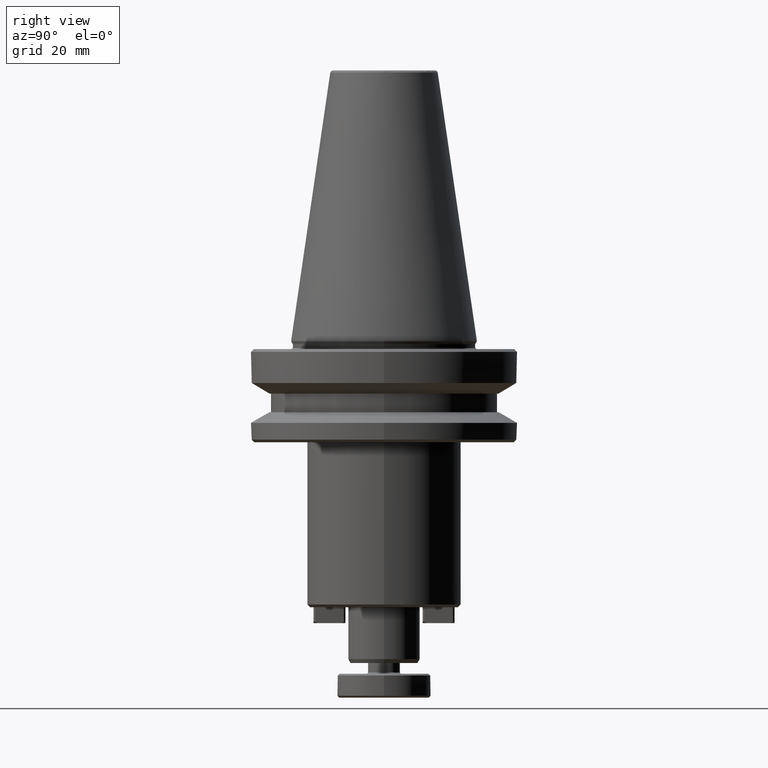
[diagram: clean part render]
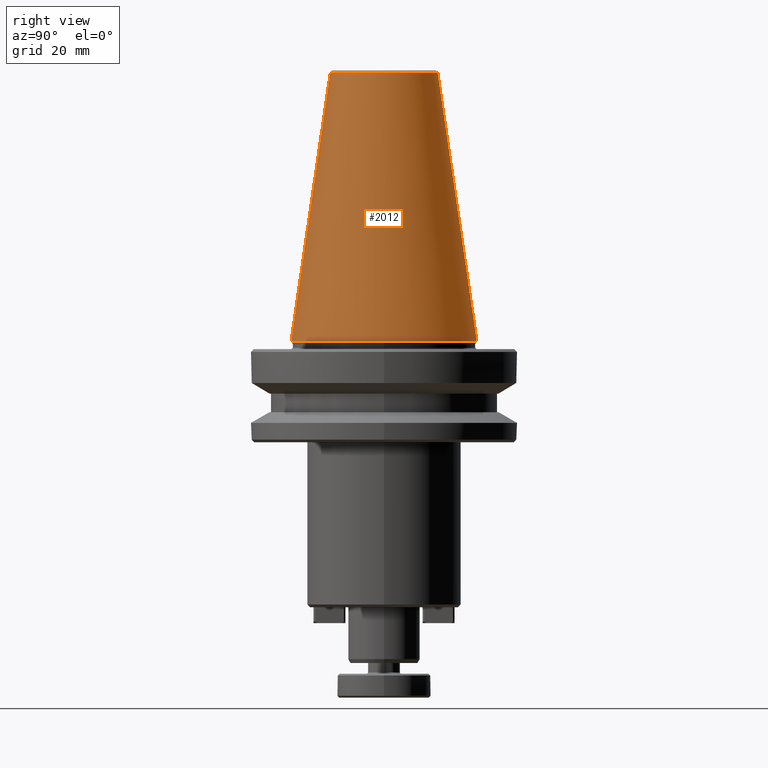
[diagram: same view with one face highlighted and labeled with its STEP entity id]
A machine part, right view. The second image highlights one B-rep face of the part: STEP entity #2012.
In plain terms, the highlighted conical surface has half-angle 8.297 deg.
Its self-contained STEP definition (entity closure, byte-faithful):
#10 = EDGE_CURVE ( 'NONE', #429, #729, #133, .T. ) ;
#61 = ORIENTED_EDGE ( 'NONE', *, *, #10, .T. ) ;
#117 = CARTESIAN_POINT ( 'NONE',  ( 0.0000000000000000000, 20.20381605152244500, 100.9443082272672700 ) ) ;
#133 = CIRCLE ( 'NONE', #542, 34.92499999999999700 ) ;
#211 = CIRCLE ( 'NONE', #232, 20.20381605152244500 ) ;
#232 = AXIS2_PLACEMENT_3D ( 'NONE', #2063, #2060, #2057 ) ;
#256 = CONICAL_SURFACE ( 'NONE', #375, 34.92499999999999700, 0.1448138465474120300 ) ;
#265 = ORIENTED_EDGE ( 'NONE', *, *, #976, .T. ) ;
#375 = AXIS2_PLACEMENT_3D ( 'NONE', #609, #1203, #2597 ) ;
#429 = VERTEX_POINT ( 'NONE', #1661 ) ;
#517 = EDGE_CURVE ( 'NONE', #2406, #429, #1044, .T. ) ;
#525 = VECTOR ( 'NONE', #1539, 1000.000000000000000 ) ;
#542 = AXIS2_PLACEMENT_3D ( 'NONE', #2073, #2144, #2457 ) ;
#594 = EDGE_CURVE ( 'NONE', #1808, #2384, #2716, .T. ) ;
#609 = CARTESIAN_POINT ( 'NONE',  ( 0.0000000000000000000, 0.0000000000000000000, -1.235024670767087600E-014 ) ) ;
#653 = CIRCLE ( 'NONE', #1254, 20.20381605152244500 ) ;
#718 = DIRECTION ( 'NONE',  ( -1.000000000000000000, 0.0000000000000000000, 0.0000000000000000000 ) ) ;
#719 = DIRECTION ( 'NONE',  ( 0.0000000000000000000, 0.0000000000000000000, -1.000000000000000000 ) ) ;
#721 = CARTESIAN_POINT ( 'NONE',  ( 0.0000000000000000000, 0.0000000000000000000, 100.9443082272672700 ) ) ;
#729 = VERTEX_POINT ( 'NONE', #1265 ) ;
#756 = ORIENTED_EDGE ( 'NONE', *, *, #1307, .T. ) ;
#837 = FACE_OUTER_BOUND ( 'NONE', #1217, .T. ) ;
#879 = CIRCLE ( 'NONE', #2521, 34.92499999999999700 ) ;
#900 = CARTESIAN_POINT ( 'NONE',  ( 20.20381605152244500, 0.0000000000000000000, 100.9443082272672700 ) ) ;
#957 = DIRECTION ( 'NONE',  ( -1.000000000000000000, 0.0000000000000000000, -3.611427007686981100E-016 ) ) ;
#958 = DIRECTION ( 'NONE',  ( -0.0000000000000000000, -0.0000000000000000000, 1.000000000000000000 ) ) ;
#960 = CARTESIAN_POINT ( 'NONE',  ( 0.0000000000000000000, 0.0000000000000000000, 0.0000000000000000000 ) ) ;
#976 = EDGE_CURVE ( 'NONE', #729, #2384, #879, .T. ) ;
#1017 = VERTEX_POINT ( 'NONE', #900 ) ;
#1044 = LINE ( 'NONE', #1479, #525 ) ;
#1203 = DIRECTION ( 'NONE',  ( 0.0000000000000000000, 2.205789485339712300E-032, -1.000000000000000000 ) ) ;
#1217 = EDGE_LOOP ( 'NONE', ( #756, #1802, #1671, #61, #265, #2366 ) ) ;
#1254 = AXIS2_PLACEMENT_3D ( 'NONE', #721, #719, #718 ) ;
#1265 = CARTESIAN_POINT ( 'NONE',  ( 34.92499999999999700, 0.0000000000000000000, 0.0000000000000000000 ) ) ;
#1307 = EDGE_CURVE ( 'NONE', #1808, #1017, #653, .T. ) ;
#1400 = DIRECTION ( 'NONE',  ( 0.0000000000000000000, 0.1443082272673000500, -0.9895327864921754600 ) ) ;
#1411 = CARTESIAN_POINT ( 'NONE',  ( 0.0000000000000000000, 34.92499999999999700, -1.235024670767087400E-014 ) ) ;
#1479 = CARTESIAN_POINT ( 'NONE',  ( 4.277078946022130900E-015, -34.92499999999999700, -1.235024670767087800E-014 ) ) ;
#1539 = DIRECTION ( 'NONE',  ( 1.767266086135278000E-017, -0.1443082272673000500, -0.9895327864921754600 ) ) ;
#1661 = CARTESIAN_POINT ( 'NONE',  ( 4.277078946022130900E-015, -34.92499999999999700, 0.0000000000000000000 ) ) ;
#1671 = ORIENTED_EDGE ( 'NONE', *, *, #517, .T. ) ;
#1802 = ORIENTED_EDGE ( 'NONE', *, *, #2491, .T. ) ;
#1808 = VERTEX_POINT ( 'NONE', #117 ) ;
#2012 = ADVANCED_FACE ( 'NONE', ( #837 ), #256, .T. ) ;
#2057 = DIRECTION ( 'NONE',  ( -1.000000000000000000, 0.0000000000000000000, 0.0000000000000000000 ) ) ;
#2060 = DIRECTION ( 'NONE',  ( 0.0000000000000000000, 0.0000000000000000000, -1.000000000000000000 ) ) ;
#2063 = CARTESIAN_POINT ( 'NONE',  ( 0.0000000000000000000, 0.0000000000000000000, 100.9443082272672700 ) ) ;
#2073 = CARTESIAN_POINT ( 'NONE',  ( 0.0000000000000000000, 0.0000000000000000000, 0.0000000000000000000 ) ) ;
#2144 = DIRECTION ( 'NONE',  ( -0.0000000000000000000, -0.0000000000000000000, 1.000000000000000000 ) ) ;
#2218 = CARTESIAN_POINT ( 'NONE',  ( 3.375666405914009500E-015, -20.20381605152244500, 100.9443082272672700 ) ) ;
#2237 = CARTESIAN_POINT ( 'NONE',  ( 0.0000000000000000000, 34.92499999999999700, 0.0000000000000000000 ) ) ;
#2366 = ORIENTED_EDGE ( 'NONE', *, *, #594, .F. ) ;
#2384 = VERTEX_POINT ( 'NONE', #2237 ) ;
#2406 = VERTEX_POINT ( 'NONE', #2218 ) ;
#2457 = DIRECTION ( 'NONE',  ( -1.000000000000000000, 0.0000000000000000000, -3.611427007686981100E-016 ) ) ;
#2491 = EDGE_CURVE ( 'NONE', #1017, #2406, #211, .T. ) ;
#2521 = AXIS2_PLACEMENT_3D ( 'NONE', #960, #958, #957 ) ;
#2597 = DIRECTION ( 'NONE',  ( 0.0000000000000000000, 1.000000000000000000, 4.411578970679424000E-032 ) ) ;
#2649 = VECTOR ( 'NONE', #1400, 1000.000000000000000 ) ;
#2716 = LINE ( 'NONE', #1411, #2649 ) ;